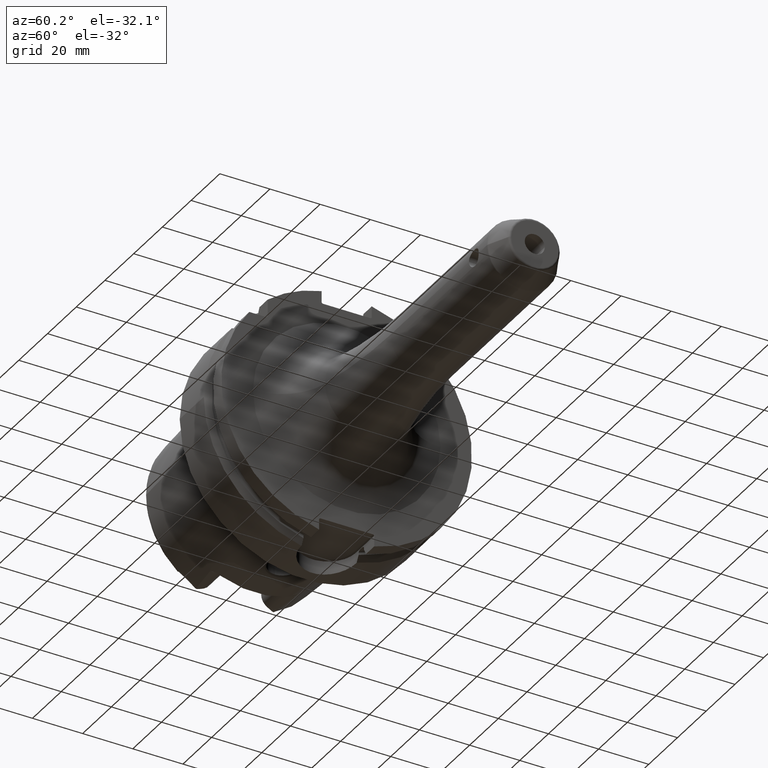
[diagram: clean part render]
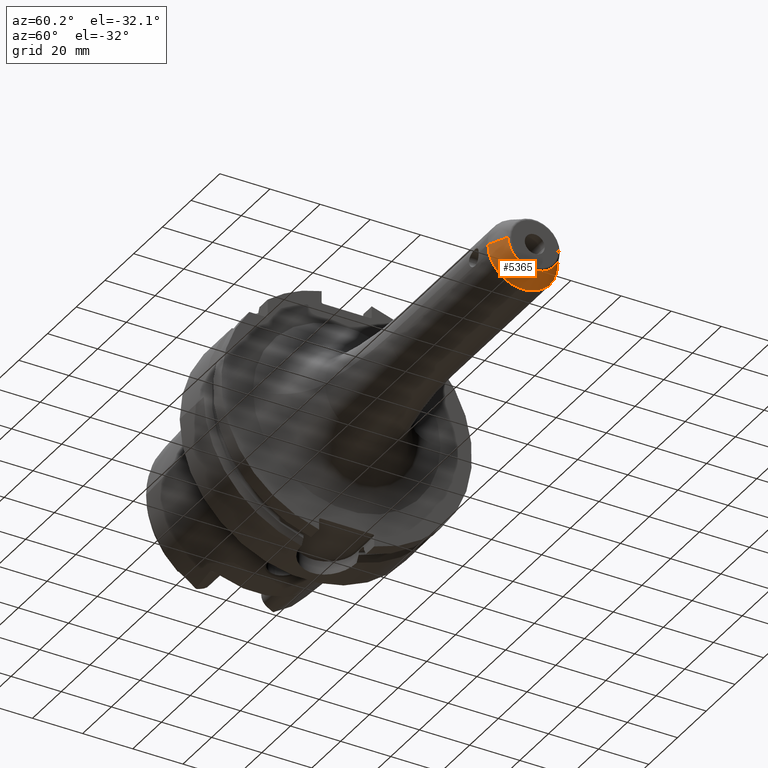
[diagram: same view with one face highlighted and labeled with its STEP entity id]
A machine part, auxiliary view. The second image highlights one B-rep face of the part: STEP entity #5365.
In plain terms, the highlighted conical surface has half-angle 25 deg.
Its self-contained STEP definition (entity closure, byte-faithful):
#2045=CARTESIAN_POINT('',(1.516228959171E2,0.E0,0.E0));
#2046=DIRECTION('',(-1.E0,0.E0,0.E0));
#2047=DIRECTION('',(0.E0,1.E0,0.E0));
#2048=AXIS2_PLACEMENT_3D('',#2045,#2046,#2047);
#2050=DIRECTION('',(-9.063077870366E-1,-4.226182617407E-1,-3.093454180875E-13));
#2051=VECTOR('',#2050,8.606041409160E0);
#2052=CARTESIAN_POINT('',(1.594226182617E2,-1.026923752623E1,
2.903237963454E-13));
#2053=LINE('',#2052,#2051);
#2054=CARTESIAN_POINT('',(1.594226182617E2,0.E0,0.E0));
#2055=DIRECTION('',(-1.E0,0.E0,0.E0));
#2056=DIRECTION('',(0.E0,1.E0,0.E0));
#2057=AXIS2_PLACEMENT_3D('',#2054,#2055,#2056);
#2059=DIRECTION('',(-9.063077870366E-1,4.226182617407E-1,3.085415167637E-13));
#2060=VECTOR('',#2059,8.606041409160E0);
#2061=CARTESIAN_POINT('',(1.594226182617E2,1.026923752623E1,
-2.906416705141E-13));
#2062=LINE('',#2061,#2060);
#3309=CARTESIAN_POINT('',(1.516228959171E2,1.390630778704E1,0.E0));
#3310=CARTESIAN_POINT('',(1.516228959171E2,-1.390630778704E1,0.E0));
#3311=VERTEX_POINT('',#3309);
#3312=VERTEX_POINT('',#3310);
#3313=CARTESIAN_POINT('',(1.594226182617E2,1.026923752623E1,0.E0));
#3314=CARTESIAN_POINT('',(1.594226182617E2,-1.026923752623E1,0.E0));
#3315=VERTEX_POINT('',#3313);
#3316=VERTEX_POINT('',#3314);
#5351=CARTESIAN_POINT('',(1.555227570894E2,0.E0,0.E0));
#5352=DIRECTION('',(-1.E0,0.E0,0.E0));
#5353=DIRECTION('',(0.E0,1.E0,0.E0));
#5354=AXIS2_PLACEMENT_3D('',#5351,#5352,#5353);
#5355=CONICAL_SURFACE('',#5354,1.208777265663E1,2.5E1);
#5357=ORIENTED_EDGE('',*,*,#5356,.T.);
#5359=ORIENTED_EDGE('',*,*,#5358,.F.);
#5360=ORIENTED_EDGE('',*,*,#5341,.F.);
#5362=ORIENTED_EDGE('',*,*,#5361,.T.);
#5363=EDGE_LOOP('',(#5357,#5359,#5360,#5362));
#5364=FACE_OUTER_BOUND('',#5363,.F.);
#5365=ADVANCED_FACE('',(#5364),#5355,.T.);
#2049=CIRCLE('',#2048,1.390630778704E1);
#2058=CIRCLE('',#2057,1.026923752623E1);
#5341=EDGE_CURVE('',#3315,#3316,#2058,.T.);
#5356=EDGE_CURVE('',#3311,#3312,#2049,.T.);
#5358=EDGE_CURVE('',#3316,#3312,#2053,.T.);
#5361=EDGE_CURVE('',#3315,#3311,#2062,.T.);